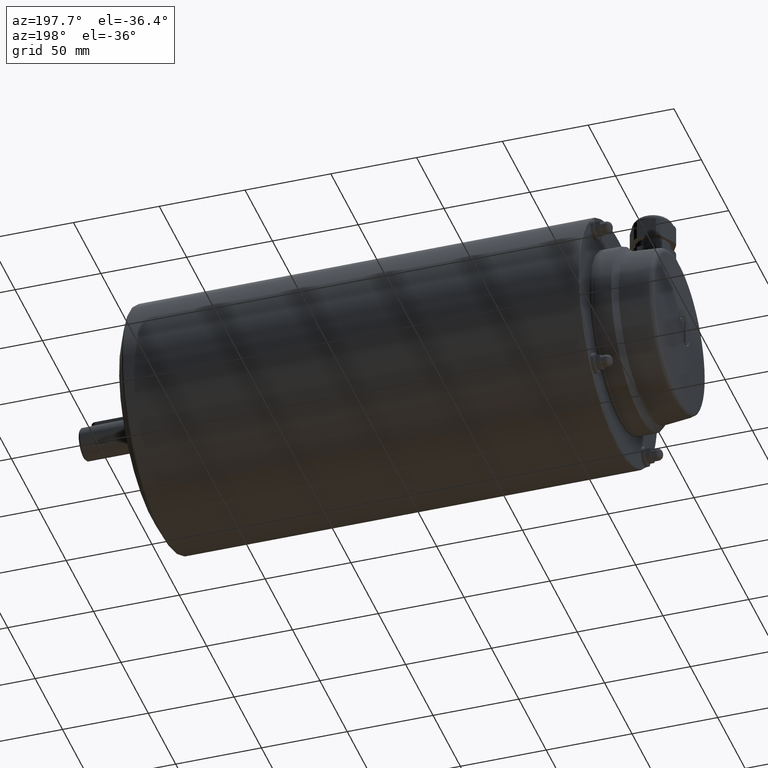
[diagram: clean part render]
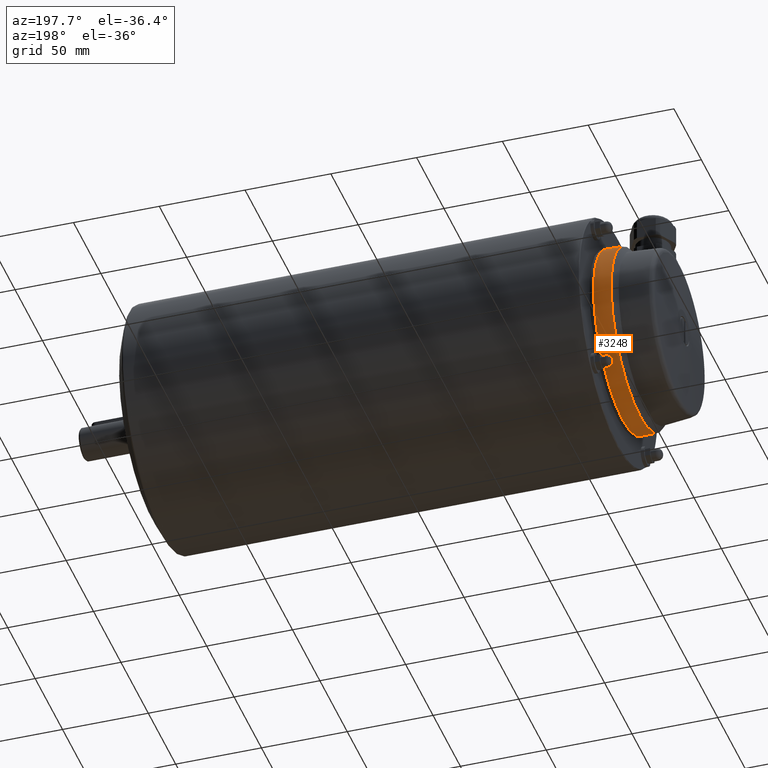
[diagram: same view with one face highlighted and labeled with its STEP entity id]
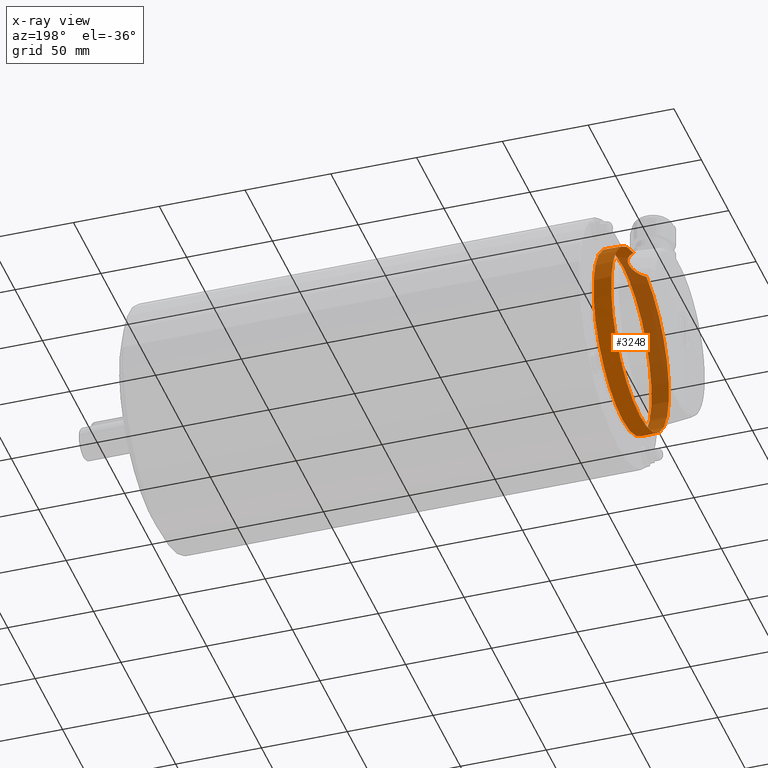
[diagram: x-ray of the same camera — body ghosted, the highlighted face saturated]
A machine part, auxiliary view. The second image highlights one B-rep face of the part: STEP entity #3248.
The next image is the same camera in x-ray: the body ghosted, the highlighted face saturated — about 43% of this face is hidden behind the body in this view.
In plain terms, the highlighted conical surface has half-angle 1.027 deg.
Its self-contained STEP definition (entity closure, byte-faithful):
#35=CONICAL_SURFACE('',#3480,52.8171893646357,0.0179206926462857);
#61=B_SPLINE_CURVE_WITH_KNOTS('',3,(#4650,#4651,#4652,#4653,#4654,#4655,
#4656,#4657,#4658),.UNSPECIFIED.,.F.,.F.,(4,1,1,1,1,1,4),(2.35739442982383E-7,
0.00352469272273088,0.00704914970601878,0.0140980636725946,0.0211469776391704,
0.0246714346224583,0.0281958916057462),.UNSPECIFIED.);
#556=ORIENTED_EDGE('',*,*,#1076,.F.);
#557=ORIENTED_EDGE('',*,*,#1075,.F.);
#558=ORIENTED_EDGE('',*,*,#1077,.T.);
#1075=EDGE_CURVE('',#1341,#1339,#1516,.T.);
#1076=EDGE_CURVE('',#1339,#1341,#61,.T.);
#1077=EDGE_CURVE('',#1342,#1342,#1517,.T.);
#1339=VERTEX_POINT('',#4633);
#1341=VERTEX_POINT('',#4647);
#1342=VERTEX_POINT('',#4660);
#1516=CIRCLE('',#3479,52.8171893646357);
#1517=CIRCLE('',#3481,53.);
#1647=EDGE_LOOP('',(#556,#557));
#1648=EDGE_LOOP('',(#558));
#1890=FACE_BOUND('',#1647,.T.);
#1891=FACE_BOUND('',#1648,.T.);
#3248=ADVANCED_FACE('',(#1890,#1891),#35,.T.);
#3479=AXIS2_PLACEMENT_3D('',#4648,#3902,#3903);
#3480=AXIS2_PLACEMENT_3D('',#4649,#3904,#3905);
#3481=AXIS2_PLACEMENT_3D('',#4659,#3906,#3907);
#3902=DIRECTION('',(-1.,0.,0.));
#3903=DIRECTION('',(0.,0.,1.));
#3904=DIRECTION('',(1.,0.,0.));
#3905=DIRECTION('',(0.,0.,-1.));
#3906=DIRECTION('',(-1.,0.,0.));
#3907=DIRECTION('',(0.,0.,1.));
#4633=CARTESIAN_POINT('',(-284.5,-11.8215904175371,51.4772327575967));
#4647=CARTESIAN_POINT('',(-284.5,11.8215904175369,51.4772327575967));
#4648=CARTESIAN_POINT('',(-284.5,0.,0.));
#4649=CARTESIAN_POINT('',(-284.5,0.,0.));
#4650=CARTESIAN_POINT('',(-284.5,-11.8215904175371,51.4772327575967));
#4651=CARTESIAN_POINT('',(-283.503297148984,-11.1892498340291,51.640776361895));
#4652=CARTESIAN_POINT('',(-281.709251865002,-9.7044803372486,51.9902797103057));
#4653=CARTESIAN_POINT('',(-278.914509695069,-5.8873083897003,52.6610298760998));
#4654=CARTESIAN_POINT('',(-277.390822102848,-0.00868821675471394,53.1153354604013));
#4655=CARTESIAN_POINT('',(-278.913028978963,5.8869616690116,52.6613940263556));
#4656=CARTESIAN_POINT('',(-281.709884629504,9.70489867847099,51.990135742086));
#4657=CARTESIAN_POINT('',(-283.503247917604,11.1892186000463,51.640784440007));
#4658=CARTESIAN_POINT('',(-284.5,11.8215904175369,51.4772327575967));
#4659=CARTESIAN_POINT('',(-274.3,0.,0.));
#4660=CARTESIAN_POINT('',(-274.3,0.,53.));